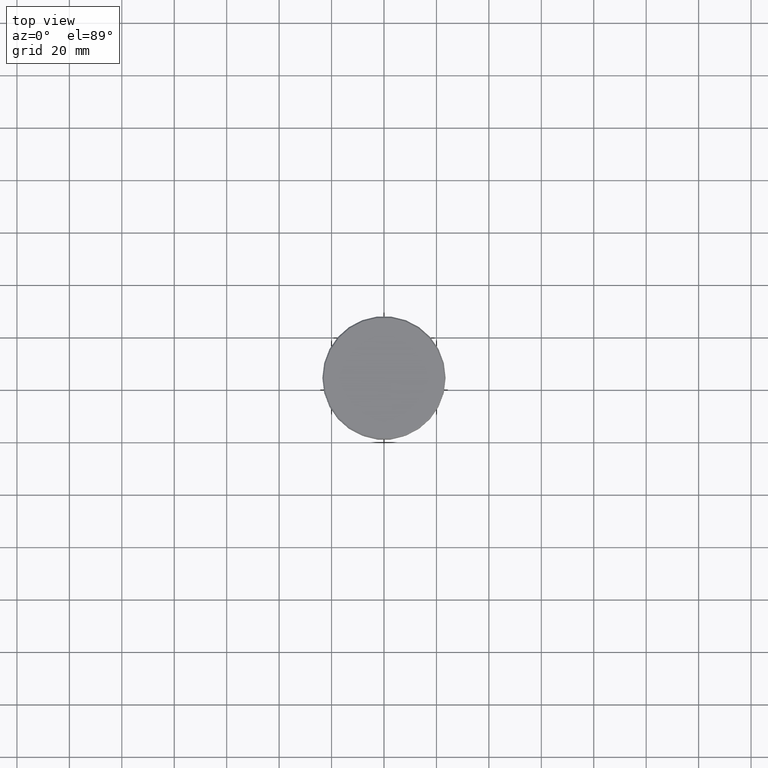
[diagram: clean part render]
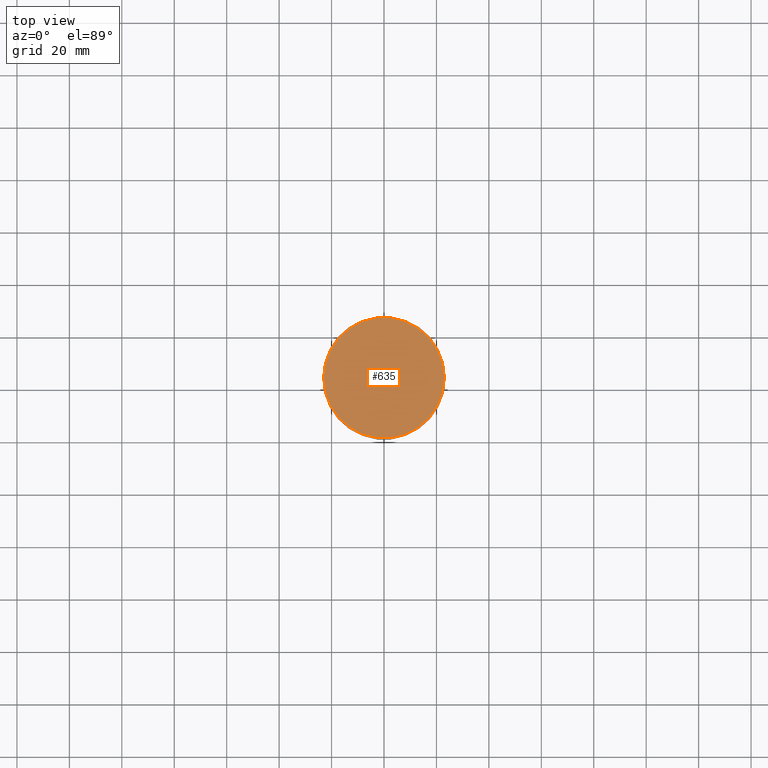
[diagram: same view with one face highlighted and labeled with its STEP entity id]
A machine part, top view. The second image highlights one B-rep face of the part: STEP entity #635.
In plain terms, the highlighted planar face has unit normal (0, -0, 1).
Its self-contained STEP definition (entity closure, byte-faithful):
#64 = DIRECTION ( 'NONE',  ( 1.000000000000000000, 0.000000000000000000, 0.000000000000000000 ) ) ;
#148 = AXIS2_PLACEMENT_3D ( 'NONE', #542, #941, #208 ) ;
#150 = DIRECTION ( 'NONE',  ( -0.000000000000000000, -0.000000000000000000, 1.000000000000000000 ) ) ;
#208 = DIRECTION ( 'NONE',  ( 1.000000000000000000, 0.000000000000000000, 0.000000000000000000 ) ) ;
#263 = AXIS2_PLACEMENT_3D ( 'NONE', #968, #150, #64 ) ;
#311 = CIRCLE ( 'NONE', #148, 23.00000000000002487 ) ;
#338 = ORIENTED_EDGE ( 'NONE', *, *, #809, .T. ) ;
#351 = AXIS2_PLACEMENT_3D ( 'NONE', #669, #1028, #875 ) ;
#386 = ORIENTED_EDGE ( 'NONE', *, *, #706, .T. ) ;
#419 = PLANE ( 'NONE',  #351 ) ;
#444 = CARTESIAN_POINT ( 'NONE',  ( -23.00000000000002487, 0.000000000000000000, 0.000000000000000000 ) ) ;
#542 = CARTESIAN_POINT ( 'NONE',  ( 0.000000000000000000, 0.000000000000000000, 0.000000000000000000 ) ) ;
#592 = VERTEX_POINT ( 'NONE', #444 ) ;
#635 = ADVANCED_FACE ( 'NONE', ( #638 ), #419, .T. ) ;
#638 = FACE_OUTER_BOUND ( 'NONE', #1037, .T. ) ;
#669 = CARTESIAN_POINT ( 'NONE',  ( 0.000000000000000000, 0.000000000000000000, 0.000000000000000000 ) ) ;
#674 = VERTEX_POINT ( 'NONE', #787 ) ;
#706 = EDGE_CURVE ( 'NONE', #674, #592, #311, .T. ) ;
#787 = CARTESIAN_POINT ( 'NONE',  ( 23.00000000000002487, 2.847303808017597717E-15, 0.000000000000000000 ) ) ;
#809 = EDGE_CURVE ( 'NONE', #592, #674, #1061, .T. ) ;
#875 = DIRECTION ( 'NONE',  ( 1.000000000000000000, 0.000000000000000000, 0.000000000000000000 ) ) ;
#941 = DIRECTION ( 'NONE',  ( -0.000000000000000000, -0.000000000000000000, 1.000000000000000000 ) ) ;
#968 = CARTESIAN_POINT ( 'NONE',  ( 0.000000000000000000, 0.000000000000000000, 0.000000000000000000 ) ) ;
#1028 = DIRECTION ( 'NONE',  ( 0.000000000000000000, -0.000000000000000000, 1.000000000000000000 ) ) ;
#1037 = EDGE_LOOP ( 'NONE', ( #338, #386 ) ) ;
#1061 = CIRCLE ( 'NONE', #263, 23.00000000000002487 ) ;